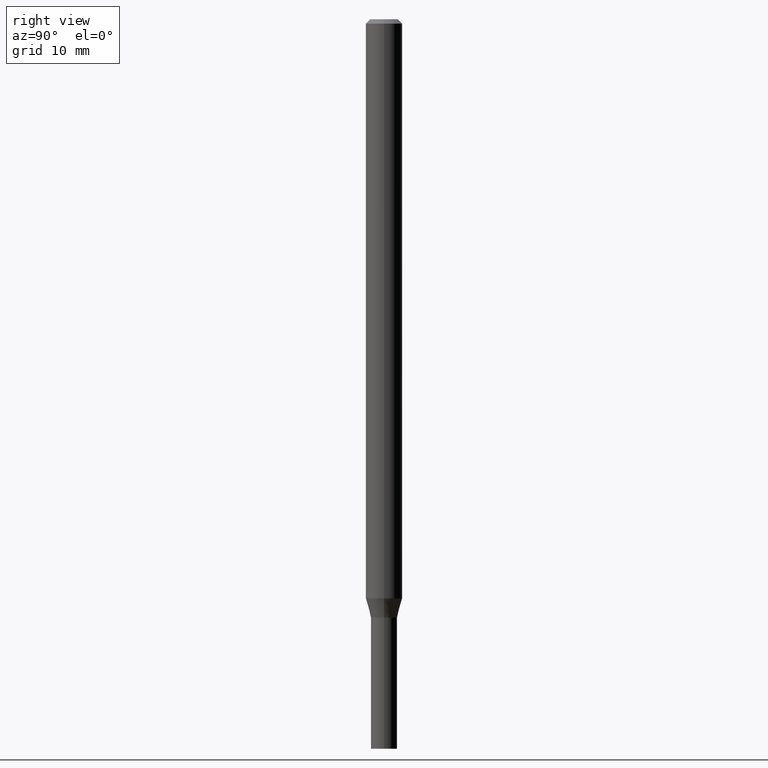
[diagram: clean part render]
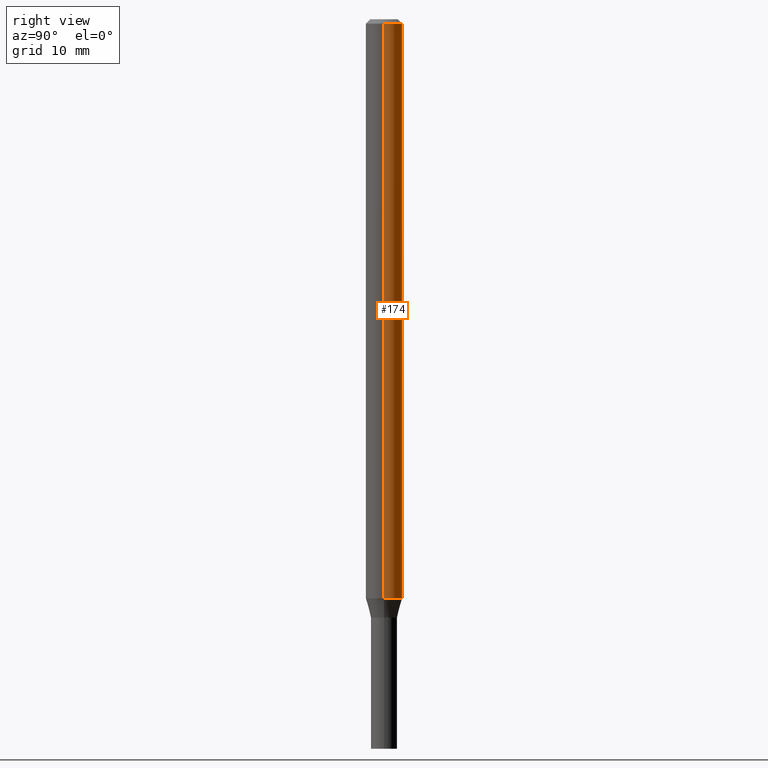
[diagram: same view with one face highlighted and labeled with its STEP entity id]
A machine part, right view. The second image highlights one B-rep face of the part: STEP entity #174.
In plain terms, the highlighted cylindrical surface (edge-blend (fillet) strip) has radius 1.5875 mm, axis along (-0, 0, 1).
Its self-contained STEP definition (entity closure, byte-faithful):
#4 = DIRECTION ( 'NONE',  ( -2.445468806185136877E-29, 3.491481338843145188E-15, 1.000000000000000000 ) ) ;
#7 = DIRECTION ( 'NONE',  ( 1.000000000000000000, -6.982962677686266711E-15, 4.876176775795935793E-29 ) ) ;
#10 = CARTESIAN_POINT ( 'NONE',  ( 0.06250000000000000000, -4.888073874380388472E-16, -0.01499999999999999944 ) ) ;
#20 = AXIS2_PLACEMENT_3D ( 'NONE', #347, #354, #456 ) ;
#39 = CIRCLE ( 'NONE', #84, 0.06250000000000000000 ) ;
#44 = DIRECTION ( 'NONE',  ( -2.445468806185136597E-29, 3.491481338843145583E-15, 1.000000000000000000 ) ) ;
#54 = AXIS2_PLACEMENT_3D ( 'NONE', #75, #400, #7 ) ;
#59 = VERTEX_POINT ( 'NONE', #145 ) ;
#75 = CARTESIAN_POINT ( 'NONE',  ( 0.000000000000000000, 0.000000000000000000, 0.000000000000000000 ) ) ;
#84 = AXIS2_PLACEMENT_3D ( 'NONE', #340, #44, #191 ) ;
#87 = EDGE_LOOP ( 'NONE', ( #305, #197, #360, #158 ) ) ;
#126 = VERTEX_POINT ( 'NONE', #242 ) ;
#145 = CARTESIAN_POINT ( 'NONE',  ( -0.06250000000000000000, -6.485415784149167316E-15, -1.984689110867545514 ) ) ;
#158 = ORIENTED_EDGE ( 'NONE', *, *, #189, .F. ) ;
#159 = EDGE_CURVE ( 'NONE', #59, #373, #292, .T. ) ;
#174 = ADVANCED_FACE ( 'NONE', ( #395 ), #432, .T. ) ;
#189 = EDGE_CURVE ( 'NONE', #126, #407, #398, .T. ) ;
#190 = CARTESIAN_POINT ( 'NONE',  ( 0.06250000000000000000, -4.364351673553916694E-16, 3.047610484872459871E-30 ) ) ;
#191 = DIRECTION ( 'NONE',  ( 1.000000000000000000, -6.982962677686262766E-15, 0.000000000000000000 ) ) ;
#197 = ORIENTED_EDGE ( 'NONE', *, *, #159, .T. ) ;
#237 = EDGE_CURVE ( 'NONE', #126, #59, #39, .T. ) ;
#242 = CARTESIAN_POINT ( 'NONE',  ( 0.06250000000000000000, -7.365940161354620812E-15, -1.984689110867545514 ) ) ;
#256 = CARTESIAN_POINT ( 'NONE',  ( -0.06250000000000000000, -3.046849397190876087E-15, -0.01499999999999999944 ) ) ;
#268 = VECTOR ( 'NONE', #4, 39.37007874015748143 ) ;
#292 = LINE ( 'NONE', #364, #374 ) ;
#305 = ORIENTED_EDGE ( 'NONE', *, *, #237, .T. ) ;
#308 = CIRCLE ( 'NONE', #20, 0.06250000000000000000 ) ;
#313 = EDGE_CURVE ( 'NONE', #407, #373, #308, .T. ) ;
#340 = CARTESIAN_POINT ( 'NONE',  ( 4.853495310601896442E-29, -6.929504993999229932E-15, -1.984689110867545514 ) ) ;
#347 = CARTESIAN_POINT ( 'NONE',  ( 3.668203209277705088E-31, -5.237222008264718399E-17, -0.01499999999999999944 ) ) ;
#354 = DIRECTION ( 'NONE',  ( -2.445468806185136597E-29, 3.491481338843145583E-15, 1.000000000000000000 ) ) ;
#360 = ORIENTED_EDGE ( 'NONE', *, *, #313, .F. ) ;
#364 = CARTESIAN_POINT ( 'NONE',  ( -0.06250000000000000000, 4.440892098500626162E-16, -3.074334431409316114E-30 ) ) ;
#367 = DIRECTION ( 'NONE',  ( -2.445468806185136877E-29, 3.491481338843145188E-15, 1.000000000000000000 ) ) ;
#373 = VERTEX_POINT ( 'NONE', #256 ) ;
#374 = VECTOR ( 'NONE', #367, 39.37007874015748143 ) ;
#395 = FACE_OUTER_BOUND ( 'NONE', #87, .T. ) ;
#398 = LINE ( 'NONE', #190, #268 ) ;
#400 = DIRECTION ( 'NONE',  ( -2.445468806185136597E-29, 3.491481338843145583E-15, 1.000000000000000000 ) ) ;
#407 = VERTEX_POINT ( 'NONE', #10 ) ;
#432 = CYLINDRICAL_SURFACE ( 'NONE', #54, 0.06250000000000000000 ) ;
#456 = DIRECTION ( 'NONE',  ( 1.000000000000000000, -6.982962677686266711E-15, 0.000000000000000000 ) ) ;